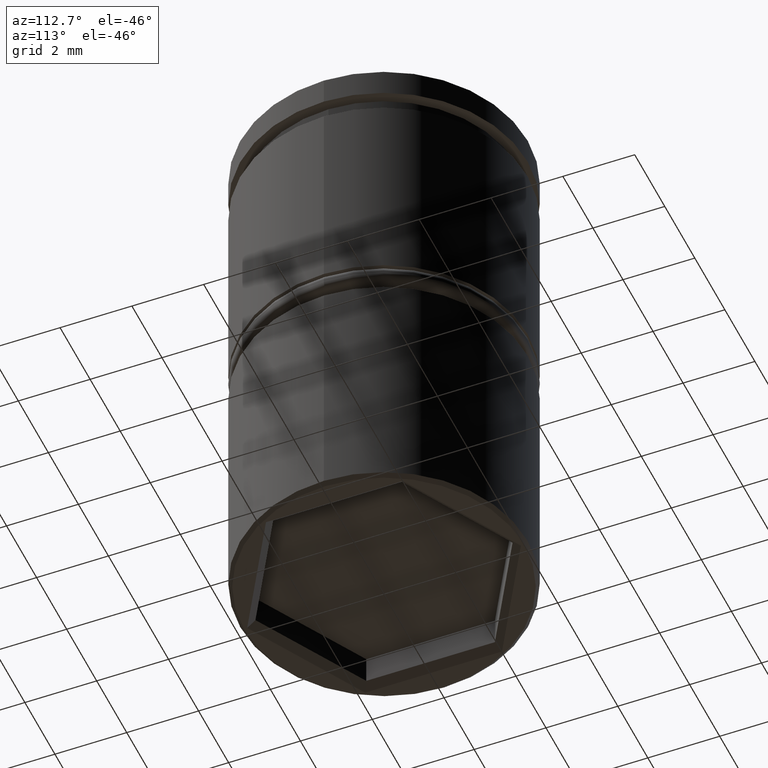
[diagram: clean part render]
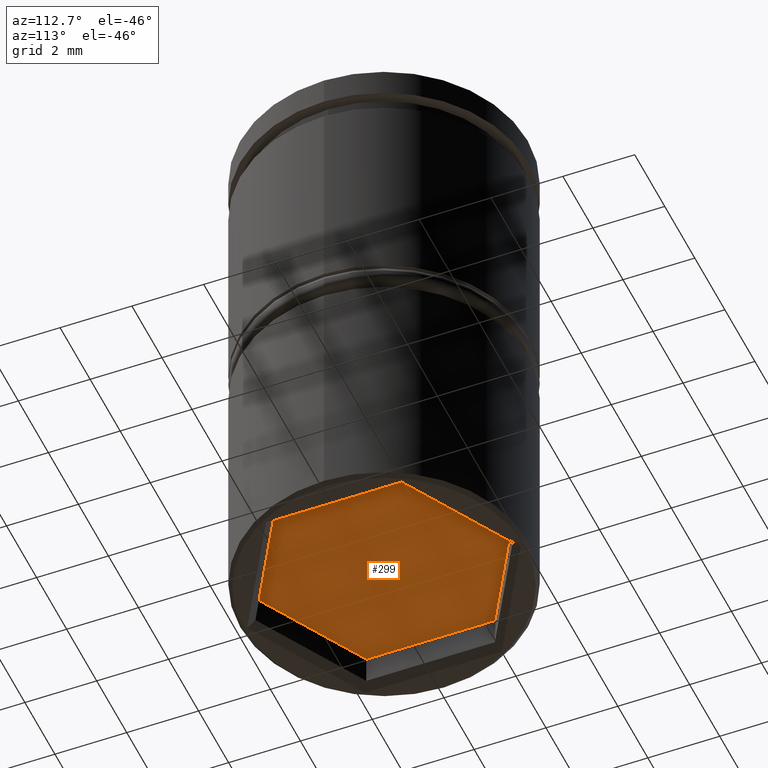
[diagram: same view with one face highlighted and labeled with its STEP entity id]
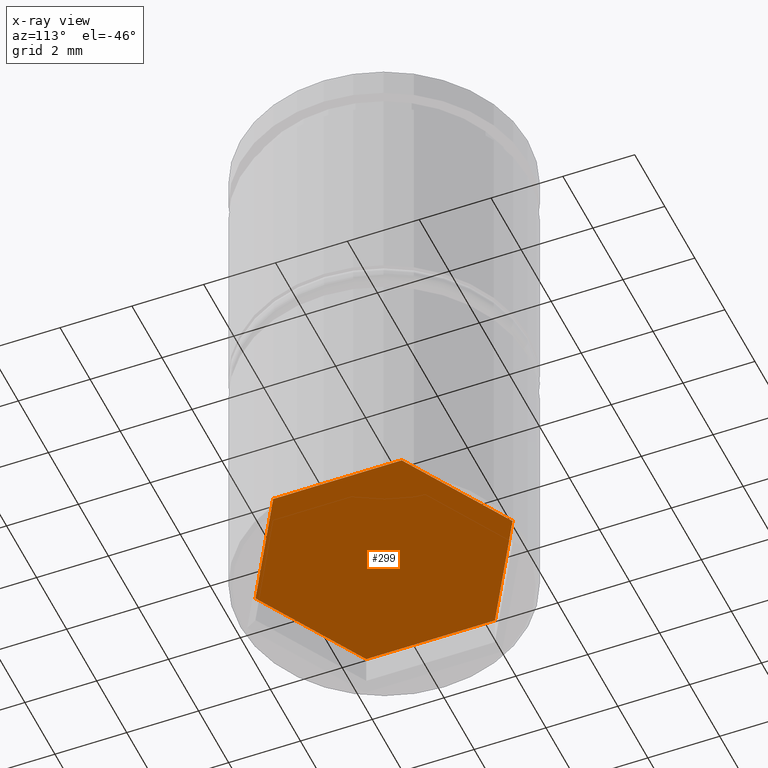
[diagram: x-ray of the same camera — body ghosted, the highlighted face saturated]
A machine part, auxiliary view. The second image highlights one B-rep face of the part: STEP entity #299.
The next image is the same camera in x-ray: the body ghosted, the highlighted face saturated — about 0% of this face is hidden behind the body in this view.
In plain terms, the highlighted planar face has unit normal (0, 0, -1).
Its self-contained STEP definition (entity closure, byte-faithful):
#11 = CARTESIAN_POINT ( 'NONE',  ( 0.000000000000000000, 3.579571668975682019, -13.99999999999999822 ) ) ;
#26 = CARTESIAN_POINT ( 'NONE',  ( -3.100000000000002753, 1.789785834487841676, -13.99999999999999822 ) ) ;
#30 = VECTOR ( 'NONE', #137, 1000.000000000000114 ) ;
#137 = DIRECTION ( 'NONE',  ( 0.8660254037844385966, -0.5000000000000001110, 0.000000000000000000 ) ) ;
#165 = EDGE_CURVE ( 'NONE', #200, #838, #243, .T. ) ;
#181 = LINE ( 'NONE', #549, #926 ) ;
#200 = VERTEX_POINT ( 'NONE', #621 ) ;
#243 = LINE ( 'NONE', #257, #826 ) ;
#244 = EDGE_LOOP ( 'NONE', ( #641, #1151, #976, #571, #602, #595 ) ) ;
#257 = CARTESIAN_POINT ( 'NONE',  ( 3.100000000000002753, 1.789785834487839900, -13.99999999999999822 ) ) ;
#261 = DIRECTION ( 'NONE',  ( 0.8660254037844388186, 0.4999999999999997224, 0.000000000000000000 ) ) ;
#299 = ADVANCED_FACE ( 'NONE', ( #1130 ), #1136, .T. ) ;
#320 = DIRECTION ( 'NONE',  ( -1.000000000000000000, 0.000000000000000000, -0.000000000000000000 ) ) ;
#330 = DIRECTION ( 'NONE',  ( -0.8660254037844385966, -0.4999999999999999445, 0.000000000000000000 ) ) ;
#333 = EDGE_CURVE ( 'NONE', #1142, #200, #492, .T. ) ;
#353 = VERTEX_POINT ( 'NONE', #1033 ) ;
#378 = LINE ( 'NONE', #977, #615 ) ;
#415 = CARTESIAN_POINT ( 'NONE',  ( -6.478548477179494301E-16, -3.579571668975683352, -13.99999999999999822 ) ) ;
#422 = LINE ( 'NONE', #854, #1146 ) ;
#427 = LINE ( 'NONE', #1143, #640 ) ;
#468 = VERTEX_POINT ( 'NONE', #415 ) ;
#492 = LINE ( 'NONE', #689, #30 ) ;
#535 = EDGE_CURVE ( 'NONE', #353, #694, #422, .T. ) ;
#549 = CARTESIAN_POINT ( 'NONE',  ( -6.478548477179494301E-16, -3.579571668975683352, -13.99999999999999822 ) ) ;
#571 = ORIENTED_EDGE ( 'NONE', *, *, #957, .T. ) ;
#595 = ORIENTED_EDGE ( 'NONE', *, *, #535, .T. ) ;
#602 = ORIENTED_EDGE ( 'NONE', *, *, #1013, .T. ) ;
#612 = DIRECTION ( 'NONE',  ( -1.211544031239644006E-16, -1.000000000000000000, 0.000000000000000000 ) ) ;
#615 = VECTOR ( 'NONE', #261, 1000.000000000000114 ) ;
#621 = CARTESIAN_POINT ( 'NONE',  ( 3.100000000000002753, 1.789785834487839900, -13.99999999999999822 ) ) ;
#640 = VECTOR ( 'NONE', #330, 1000.000000000000114 ) ;
#641 = ORIENTED_EDGE ( 'NONE', *, *, #661, .T. ) ;
#661 = EDGE_CURVE ( 'NONE', #694, #1142, #378, .T. ) ;
#683 = CARTESIAN_POINT ( 'NONE',  ( 0.000000000000000000, 0.000000000000000000, -13.99999999999999822 ) ) ;
#689 = CARTESIAN_POINT ( 'NONE',  ( 0.000000000000000000, 3.579571668975682019, -13.99999999999999822 ) ) ;
#693 = CARTESIAN_POINT ( 'NONE',  ( 3.100000000000002309, -1.789785834487841676, -13.99999999999999822 ) ) ;
#694 = VERTEX_POINT ( 'NONE', #26 ) ;
#798 = DIRECTION ( 'NONE',  ( -0.8660254037844385966, 0.5000000000000001110, 0.000000000000000000 ) ) ;
#826 = VECTOR ( 'NONE', #612, 1000.000000000000000 ) ;
#838 = VERTEX_POINT ( 'NONE', #693 ) ;
#854 = CARTESIAN_POINT ( 'NONE',  ( -3.100000000000002753, -1.789785834487841232, -13.99999999999999822 ) ) ;
#926 = VECTOR ( 'NONE', #798, 1000.000000000000000 ) ;
#957 = EDGE_CURVE ( 'NONE', #838, #468, #427, .T. ) ;
#976 = ORIENTED_EDGE ( 'NONE', *, *, #165, .T. ) ;
#977 = CARTESIAN_POINT ( 'NONE',  ( -3.100000000000002753, 1.789785834487841676, -13.99999999999999822 ) ) ;
#1009 = AXIS2_PLACEMENT_3D ( 'NONE', #683, #1121, #320 ) ;
#1013 = EDGE_CURVE ( 'NONE', #468, #353, #181, .T. ) ;
#1033 = CARTESIAN_POINT ( 'NONE',  ( -3.100000000000002753, -1.789785834487841232, -13.99999999999999822 ) ) ;
#1121 = DIRECTION ( 'NONE',  ( 0.000000000000000000, 0.000000000000000000, -1.000000000000000000 ) ) ;
#1130 = FACE_OUTER_BOUND ( 'NONE', #244, .T. ) ;
#1136 = PLANE ( 'NONE',  #1009 ) ;
#1141 = DIRECTION ( 'NONE',  ( 0.000000000000000000, 1.000000000000000000, 0.000000000000000000 ) ) ;
#1142 = VERTEX_POINT ( 'NONE', #11 ) ;
#1143 = CARTESIAN_POINT ( 'NONE',  ( 3.100000000000002309, -1.789785834487841676, -13.99999999999999822 ) ) ;
#1146 = VECTOR ( 'NONE', #1141, 1000.000000000000000 ) ;
#1151 = ORIENTED_EDGE ( 'NONE', *, *, #333, .T. ) ;